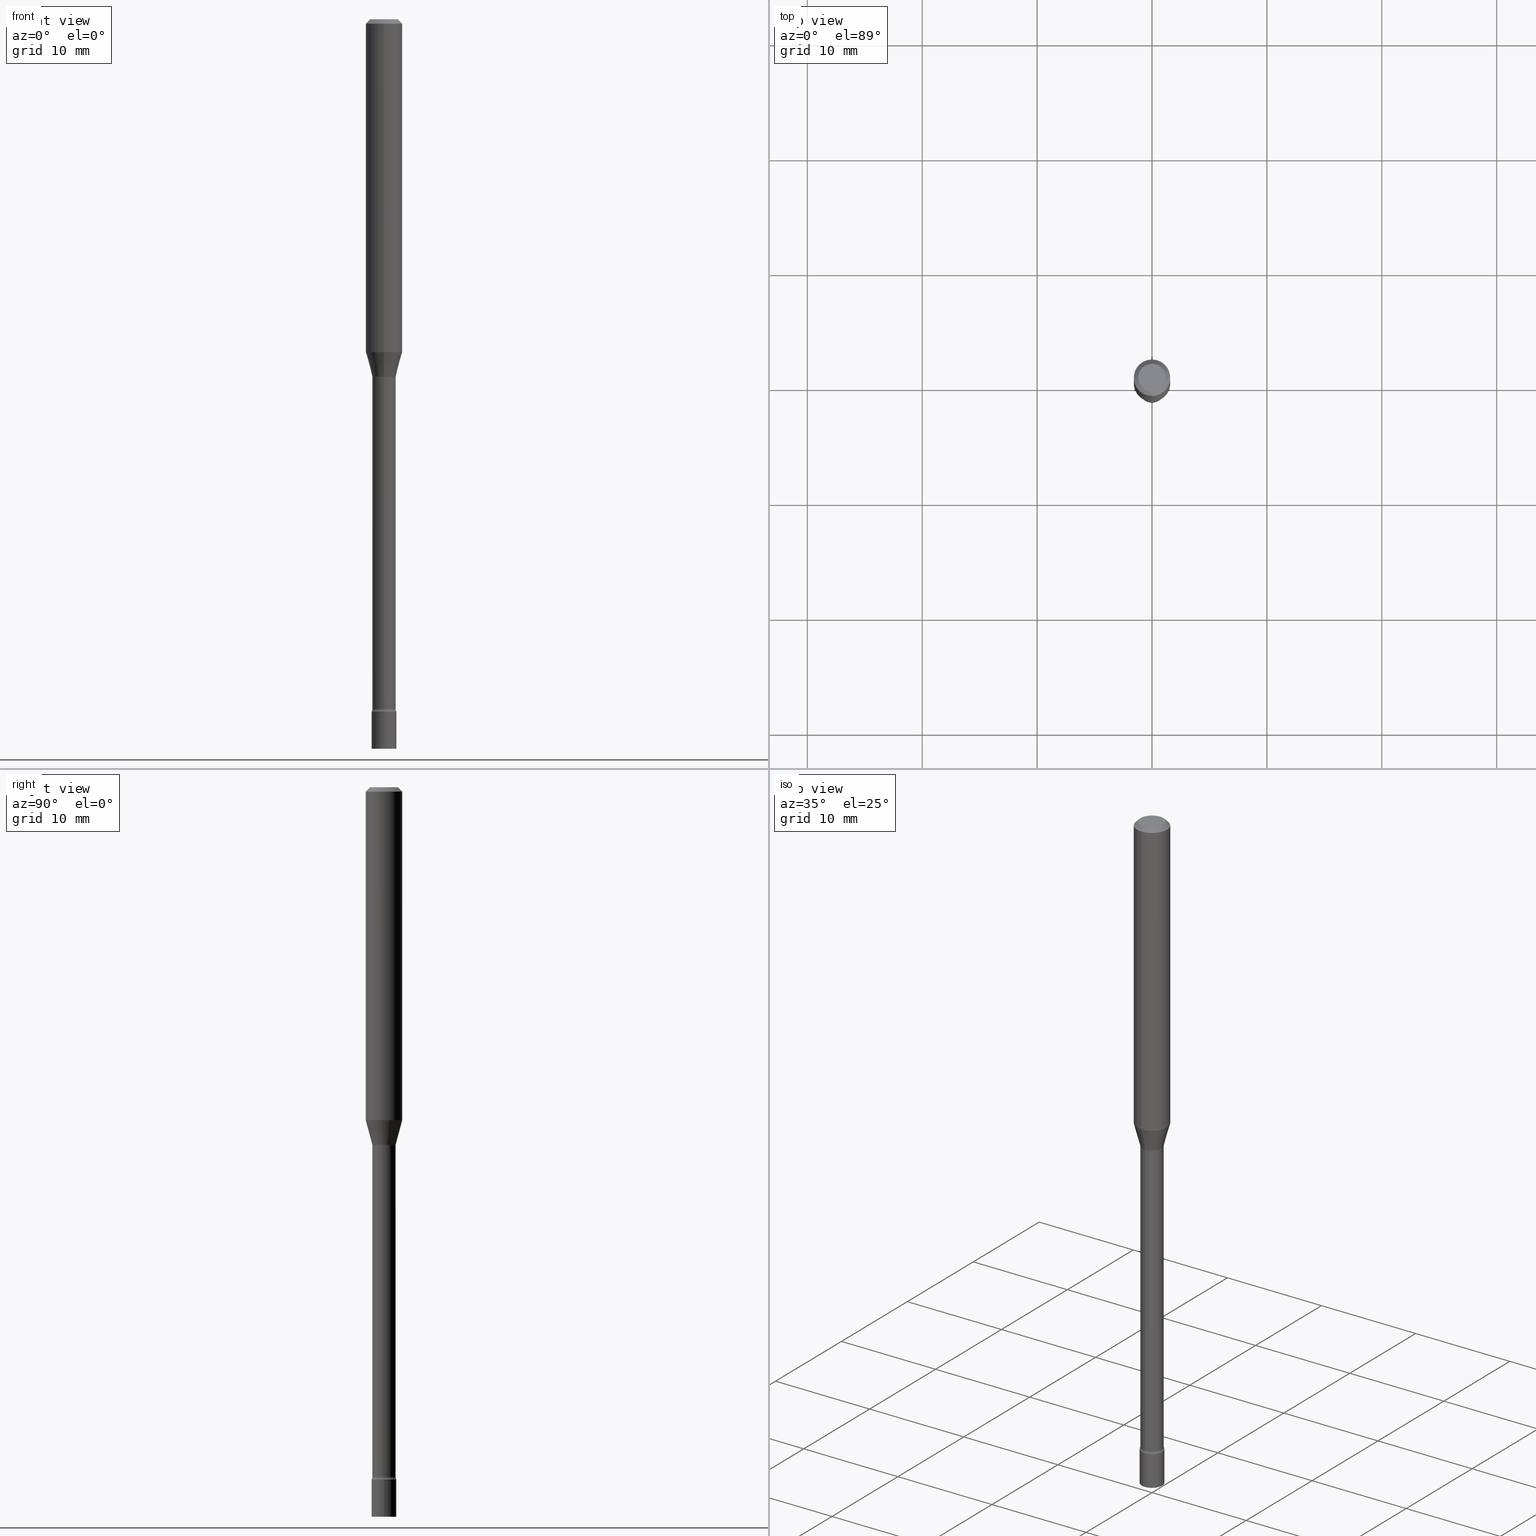
[diagram: canonical four-view strip — front | top / right | iso, engineering-drawing reading convention]
A machine part, canonical four-view strip (front | top / right | iso — engineering-drawing reading convention). The complete STEP part file that produces these views, byte-faithful:
ISO-10303-21;
HEADER;
FILE_DESCRIPTION (( 'STEP AP203' ),
    '1' );
FILE_NAME ('09729.STEP',
    '2024-03-09T01:21:40',
    ( '' ),
    ( '' ),
    'SwSTEP 2.0',
    'SolidWorks 2023',
    '' );
FILE_SCHEMA (( 'CONFIG_CONTROL_DESIGN' ));
ENDSEC;

DATA;
#1 = VERTEX_POINT ( 'NONE', #287 ) ;
#2 = DIRECTION ( 'NONE',  ( -2.445510009417752307E-29, 3.491422333468896927E-15, 1.000000000000000000 ) ) ;
#3 = DIRECTION ( 'NONE',  ( -2.445510009417752588E-29, 3.491422333468897321E-15, 1.000000000000000000 ) ) ;
#4 = UNCERTAINTY_MEASURE_WITH_UNIT (LENGTH_MEASURE( 1.000000000000000082E-05 ), #430, 'distance_accuracy_value', 'NONE');
#5 = DIRECTION ( 'NONE',  ( -6.982962677686265922E-15, -1.000000000000000000, 3.375893317972975273E-15 ) ) ;
#6 = EDGE_LOOP ( 'NONE', ( #498, #444, #475, #347 ) ) ;
#7 = AXIS2_PLACEMENT_3D ( 'NONE', #282, #121, #86 ) ;
#8 = EDGE_LOOP ( 'NONE', ( #411, #141, #196, #345 ) ) ;
#9 = CC_DESIGN_APPROVAL ( #511, ( #463 ) ) ;
#10 = DIRECTION ( 'NONE',  ( -6.982962677686266711E-15, -1.000000000000000000, 3.491422333468897716E-15 ) ) ;
#11 = DIRECTION ( 'NONE',  ( -2.445468806185136597E-29, 3.491481338843145583E-15, 1.000000000000000000 ) ) ;
#12 = DIRECTION ( 'NONE',  ( 7.105427357601001859E-15, 1.000000000000000000, 0.000000000000000000 ) ) ;
#13 = CYLINDRICAL_SURFACE ( 'NONE', #157, 0.06250000000000000000 ) ;
#14 = EDGE_LOOP ( 'NONE', ( #200, #114 ) ) ;
#15 = CARTESIAN_POINT ( 'NONE',  ( 5.780192113673480765E-29, -8.252582428684399354E-15, -2.363633549139569467 ) ) ;
#16 = ORIENTED_EDGE ( 'NONE', *, *, #279, .F. ) ;
#17 = TOROIDAL_SURFACE ( 'NONE', #27, 0.05495000000000011681, 0.01500000000000002373 ) ;
#18 = ORGANIZATION ( 'UNSPECIFIED', 'UNSPECIFIED', '' ) ;
#19 = ADVANCED_FACE ( 'NONE', ( #328 ), #49, .T. ) ;
#20 = DIRECTION ( 'NONE',  ( 2.438088387897960049E-29, -3.491481338843145188E-15, -1.000000000000000000 ) ) ;
#21 = DIRECTION ( 'NONE',  ( -1.000000000000000000, 6.982962677686265922E-15, -4.876176775795935793E-29 ) ) ;
#22 = EDGE_CURVE ( 'NONE', #366, #35, #310, .T. ) ;
#23 = PLANE ( 'NONE',  #329 ) ;
#24 = EDGE_CURVE ( 'NONE', #391, #381, #452, .T. ) ;
#25 = ORIENTED_EDGE ( 'NONE', *, *, #251, .T. ) ;
#26 = CARTESIAN_POINT ( 'NONE',  ( -4.364351673553637635E-16, -0.06250000000000398293, -1.140842254289321733 ) ) ;
#27 = AXIS2_PLACEMENT_3D ( 'NONE', #15, #449, #52 ) ;
#28 = EDGE_LOOP ( 'NONE', ( #186, #175, #146, #180 ) ) ;
#29 = EDGE_CURVE ( 'NONE', #429, #464, #85, .T. ) ;
#30 = CALENDAR_DATE ( 2024, 8, 3 ) ;
#31 = DATE_TIME_ROLE ( 'creation_date' ) ;
#32 = ADVANCED_FACE ( 'NONE', ( #401 ), #413, .T. ) ;
#33 = ORIENTED_EDGE ( 'NONE', *, *, #483, .F. ) ;
#34 = AXIS2_PLACEMENT_3D ( 'NONE', #301, #457, #373 ) ;
#35 = VERTEX_POINT ( 'NONE', #172 ) ;
#36 = PERSON_AND_ORGANIZATION ( #138, #18 ) ;
#37 = DIRECTION ( 'NONE',  ( -6.982962677686267499E-15, -1.000000000000000000, 0.000000000000000000 ) ) ;
#38 = EDGE_CURVE ( 'NONE', #391, #70, #484, .T. ) ;
#39 = DIRECTION ( 'NONE',  ( -2.445510009417752588E-29, 3.491422333468897321E-15, 1.000000000000000000 ) ) ;
#40 = CARTESIAN_POINT ( 'NONE',  ( 3.904432333002336662E-16, 0.05494999999999186646, -2.363633549139569912 ) ) ;
#41 = AXIS2_PLACEMENT_3D ( 'NONE', #334, #294, #178 ) ;
#42 = APPROVAL ( #147, 'UNSPECIFIED' ) ;
#43 = CARTESIAN_POINT ( 'NONE',  ( 2.991084955564577098E-29, -4.270332476638432999E-15, -1.223092501787273356 ) ) ;
#44 = FACE_OUTER_BOUND ( 'NONE', #265, .T. ) ;
#45 = DIRECTION ( 'NONE',  ( 1.000000000000000000, -7.105427357601001070E-15, 4.926314785934655132E-29 ) ) ;
#46 = ADVANCED_FACE ( 'NONE', ( #517 ), #158, .F. ) ;
#47 = EDGE_LOOP ( 'NONE', ( #78, #25, #330, #221 ) ) ;
#48 = DIRECTION ( 'NONE',  ( -2.445510009417752588E-29, 3.491422333468897321E-15, 1.000000000000000000 ) ) ;
#49 = CYLINDRICAL_SURFACE ( 'NONE', #179, 0.04249999999999999611 ) ;
#50 = VECTOR ( 'NONE', #376, 39.37007874015748143 ) ;
#51 = CARTESIAN_POINT ( 'NONE',  ( 4.364351673553919652E-16, 0.06249999999999995143, -0.01500000000000024751 ) ) ;
#52 = DIRECTION ( 'NONE',  ( -6.982962677686265133E-15, -1.000000000000000000, 3.491422333468897321E-15 ) ) ;
#53 = CARTESIAN_POINT ( 'NONE',  ( 5.800652008271143730E-29, -8.281793735735941096E-15, -2.371999999999999886 ) ) ;
#54 = DIRECTION ( 'NONE',  ( -2.445468806185136597E-29, 3.491481338843145583E-15, 1.000000000000000000 ) ) ;
#55 = ORIENTED_EDGE ( 'NONE', *, *, #206, .T. ) ;
#56 = CARTESIAN_POINT ( 'NONE',  ( -3.837137991388302635E-16, -0.05495000000000428708, -1.226974787463810834 ) ) ;
#57 = ORIENTED_EDGE ( 'NONE', *, *, #514, .T. ) ;
#58 = DIRECTION ( 'NONE',  ( 1.000000000000000000, -6.982962677686265922E-15, 4.876176775795935793E-29 ) ) ;
#59 = AXIS2_PLACEMENT_3D ( 'NONE', #280, #205, #288 ) ;
#60 = CARTESIAN_POINT ( 'NONE',  ( 3.000579124045969393E-29, -4.283887175554402762E-15, -1.226974787463810834 ) ) ;
#61 = VERTEX_POINT ( 'NONE', #404 ) ;
#62 = DIRECTION ( 'NONE',  ( -2.445510009417752307E-29, 3.491422333468896927E-15, 1.000000000000000000 ) ) ;
#63 = ORIENTED_EDGE ( 'NONE', *, *, #218, .F. ) ;
#64 = LINE ( 'NONE', #505, #50 ) ;
#65 = ORIENTED_EDGE ( 'NONE', *, *, #198, .F. ) ;
#66 = APPROVAL_PERSON_ORGANIZATION ( #434, #42, #109 ) ;
#67 = DATE_AND_TIME ( #349, #214 ) ;
#68 = COORDINATED_UNIVERSAL_TIME_OFFSET ( 5, 0, .BEHIND. ) ;
#69 = AXIS2_PLACEMENT_3D ( 'NONE', #173, #127, #367 ) ;
#70 = VERTEX_POINT ( 'NONE', #119 ) ;
#71 = SECURITY_CLASSIFICATION ( '', '', #272 ) ;
#72 = PERSON_AND_ORGANIZATION_ROLE ( 'design_owner' ) ;
#73 = DIRECTION ( 'NONE',  ( -6.982962677686265133E-15, -1.000000000000000000, 3.419083846888939697E-15 ) ) ;
#74 = EDGE_CURVE ( 'NONE', #381, #61, #506, .T. ) ;
#75 = CARTESIAN_POINT ( 'NONE',  ( 5.780289503016424923E-29, -8.252442961602247403E-15, -2.363633549139569467 ) ) ;
#76 = CC_DESIGN_PERSON_AND_ORGANIZATION_ASSIGNMENT ( #433, #351, ( #454 ) ) ;
#77 = DIRECTION ( 'NONE',  ( -2.445510009417752307E-29, 3.491422333468896927E-15, 1.000000000000000000 ) ) ;
#78 = ORIENTED_EDGE ( 'NONE', *, *, #448, .F. ) ;
#79 = LOCAL_TIME ( 20, 21, 40.00000000000000000, #154 ) ;
#80 = ORIENTED_EDGE ( 'NONE', *, *, #402, .T. ) ;
#81 = LINE ( 'NONE', #519, #88 ) ;
#82 = DIRECTION ( 'NONE',  ( -6.982962677686265133E-15, -1.000000000000000000, 3.491422333468897321E-15 ) ) ;
#83 = ADVANCED_BREP_SHAPE_REPRESENTATION ( '09729', ( #107, #450, #486 ), #317 ) ;
#84 = CARTESIAN_POINT ( 'NONE',  ( -4.364351673553916201E-16, -0.06250000000000000000, 2.182138958418060826E-16 ) ) ;
#85 = LINE ( 'NONE', #248, #133 ) ;
#86 = DIRECTION ( 'NONE',  ( 6.982962677686265922E-15, 1.000000000000000000, -3.483106191921935554E-15 ) ) ;
#87 = DIRECTION ( 'NONE',  ( -2.445510009417752588E-29, 3.491422333468897321E-15, 1.000000000000000000 ) ) ;
#88 = VECTOR ( 'NONE', #201, 39.37007874015748143 ) ;
#89 = ORIENTED_EDGE ( 'NONE', *, *, #125, .F. ) ;
#90 = VECTOR ( 'NONE', #2, 39.37007874015748143 ) ;
#91 = CYLINDRICAL_SURFACE ( 'NONE', #350, 0.03995000000000004797 ) ;
#92 = CARTESIAN_POINT ( 'NONE',  ( 4.440892098500625669E-16, 0.06250000000000000000, -2.182138958418060826E-16 ) ) ;
#93 = DIRECTION ( 'NONE',  ( -2.445510009417752588E-29, 3.491422333468897321E-15, 1.000000000000000000 ) ) ;
#94 = PRODUCT_RELATED_PRODUCT_CATEGORY ( 'detail', '', ( #191 ) ) ;
#95 = DIRECTION ( 'NONE',  ( -2.445510009417752588E-29, 3.491422333468897321E-15, 1.000000000000000000 ) ) ;
#96 = DIRECTION ( 'NONE',  ( -6.982962677686266711E-15, -1.000000000000000000, 0.000000000000000000 ) ) ;
#97 = ORIENTED_EDGE ( 'NONE', *, *, #372, .F. ) ;
#98 = AXIS2_PLACEMENT_3D ( 'NONE', #122, #491, #37 ) ;
#99 = CIRCLE ( 'NONE', #461, 0.01499999999999998557 ) ;
#100 = AXIS2_PLACEMENT_3D ( 'NONE', #510, #95, #460 ) ;
#101 = VERTEX_POINT ( 'NONE', #284 ) ;
#102 = PLANE ( 'NONE',  #285 ) ;
#103 = DATE_AND_TIME ( #400, #477 ) ;
#104 = AXIS2_PLACEMENT_3D ( 'NONE', #420, #93, #174 ) ;
#105 = VECTOR ( 'NONE', #479, 39.37007874015748143 ) ;
#106 = VERTEX_POINT ( 'NONE', #161 ) ;
#107 = MANIFOLD_SOLID_BREP ( 'Body-Move/Copy2[1]', #194 ) ;
#108 = ADVANCED_FACE ( 'NONE', ( #44 ), #389, .F. ) ;
#109 = APPROVAL_ROLE ( '' ) ;
#110 = ORIENTED_EDGE ( 'NONE', *, *, #418, .F. ) ;
#111 = CALENDAR_DATE ( 2024, 8, 3 ) ;
#112 = EDGE_CURVE ( 'NONE', #101, #427, #213, .T. ) ;
#113 = AXIS2_PLACEMENT_3D ( 'NONE', #439, #246, #302 ) ;
#114 = ORIENTED_EDGE ( 'NONE', *, *, #318, .F. ) ;
#115 = CIRCLE ( 'NONE', #507, 0.04749999999999999362 ) ;
#116 = ADVANCED_FACE ( 'NONE', ( #298 ), #91, .T. ) ;
#117 = EDGE_LOOP ( 'NONE', ( #305, #455, #239, #63 ) ) ;
#118 = CARTESIAN_POINT ( 'NONE',  ( 7.071611275160035944E-46, -1.009604599638609212E-31, -2.891671368314580418E-17 ) ) ;
#119 = CARTESIAN_POINT ( 'NONE',  ( -2.967759138016083736E-16, -0.04250000000000828809, -2.371999999999999886 ) ) ;
#120 = ORIENTED_EDGE ( 'NONE', *, *, #251, .F. ) ;
#121 = DIRECTION ( 'NONE',  ( 2.445510009417752588E-29, -3.491422333468897321E-15, -1.000000000000000000 ) ) ;
#122 = CARTESIAN_POINT ( 'NONE',  ( -3.837137991388033436E-16, -0.05495000000000837409, -2.363633549139569023 ) ) ;
#123 = AXIS2_PLACEMENT_3D ( 'NONE', #142, #462, #371 ) ;
#124 = VECTOR ( 'NONE', #139, 39.37007874015748143 ) ;
#125 = EDGE_CURVE ( 'NONE', #1, #228, #260, .T. ) ;
#126 = ORIENTED_EDGE ( 'NONE', *, *, #74, .T. ) ;
#127 = DIRECTION ( 'NONE',  ( -2.445510009417752588E-29, 3.491422333468897321E-15, 1.000000000000000000 ) ) ;
#128 = ORIENTED_EDGE ( 'NONE', *, *, #218, .T. ) ;
#129 = CARTESIAN_POINT ( 'NONE',  ( 2.929212428171595135E-16, 0.03994999999999183926, -2.363633549139569912 ) ) ;
#130 = DIRECTION ( 'NONE',  ( -1.807323732225325801E-15, -0.2588190451025175753, 0.9659258262890690894 ) ) ;
#131 = DIRECTION ( 'NONE',  ( -2.445510009417752588E-29, 3.491422333468897321E-15, 1.000000000000000000 ) ) ;
#132 = DIRECTION ( 'NONE',  ( -2.445510009417752588E-29, 3.491422333468897321E-15, 1.000000000000000000 ) ) ;
#133 = VECTOR ( 'NONE', #130, 39.37007874015748854 ) ;
#134 = ORIENTED_EDGE ( 'NONE', *, *, #29, .F. ) ;
#135 = DIRECTION ( 'NONE',  ( 6.982962677686265922E-15, 1.000000000000000000, -3.491422333468896927E-15 ) ) ;
#136 = DIRECTION ( 'NONE',  ( -2.445510009417752588E-29, 3.491422333468897321E-15, 1.000000000000000000 ) ) ;
#137 = CC_DESIGN_DATE_AND_TIME_ASSIGNMENT ( #155, #435, ( #71 ) ) ;
#138 = PERSON ( 'UNSPECIFIED', 'UNSPECIFIED', 'UNSPECIFIED', ('UNSPECIFIED'), ('UNSPECIFIED'), ('UNSPECIFIED') ) ;
#139 = DIRECTION ( 'NONE',  ( 1.839019923739595977E-15, 0.2588190451025243477, 0.9659258262890673130 ) ) ;
#140 = DIRECTION ( 'NONE',  ( 1.000000000000000000, -6.982962677686254089E-15, 0.000000000000000000 ) ) ;
#141 = ORIENTED_EDGE ( 'NONE', *, *, #377, .T. ) ;
#142 = CARTESIAN_POINT ( 'NONE',  ( 5.800652008271143730E-29, -8.281793735735941096E-15, -2.371999999999999886 ) ) ;
#143 = ORIENTED_EDGE ( 'NONE', *, *, #112, .T. ) ;
#144 = AXIS2_PLACEMENT_3D ( 'NONE', #422, #291, #453 ) ;
#145 =( LENGTH_UNIT ( ) NAMED_UNIT ( * ) SI_UNIT ( $, .METRE. ) );
#146 = ORIENTED_EDGE ( 'NONE', *, *, #38, .T. ) ;
#147 = APPROVAL_STATUS ( 'not_yet_approved' ) ;
#148 = AXIS2_PLACEMENT_3D ( 'NONE', #286, #447, #160 ) ;
#149 = AXIS2_PLACEMENT_3D ( 'NONE', #240, #162, #320 ) ;
#150 = EDGE_CURVE ( 'NONE', #436, #308, #441, .T. ) ;
#151 = COORDINATED_UNIVERSAL_TIME_OFFSET ( 5, 0, .BEHIND. ) ;
#152 = ORIENTED_EDGE ( 'NONE', *, *, #440, .T. ) ;
#153 = ADVANCED_FACE ( 'NONE', ( #493 ), #518, .F. ) ;
#154 = COORDINATED_UNIVERSAL_TIME_OFFSET ( 5, 0, .BEHIND. ) ;
#155 = DATE_AND_TIME ( #111, #380 ) ;
#156 = ADVANCED_FACE ( 'NONE', ( #217 ), #336, .T. ) ;
#157 = AXIS2_PLACEMENT_3D ( 'NONE', #183, #136, #340 ) ;
#158 = PLANE ( 'NONE',  #326 ) ;
#159 = AXIS2_PLACEMENT_3D ( 'NONE', #43, #39, #242 ) ;
#160 = DIRECTION ( 'NONE',  ( -6.982962677686265922E-15, -1.000000000000000000, 4.370956789862821150E-15 ) ) ;
#161 = CARTESIAN_POINT ( 'NONE',  ( 4.440892098500904235E-16, 0.06249999999999603095, -1.140842254289322177 ) ) ;
#162 = DIRECTION ( 'NONE',  ( -2.445510009417752588E-29, 3.491422333468897321E-15, 1.000000000000000000 ) ) ;
#163 = DIRECTION ( 'NONE',  ( 1.000000000000000000, -6.982962677686267499E-15, 4.876176775795935793E-29 ) ) ;
#164 = FACE_OUTER_BOUND ( 'NONE', #270, .T. ) ;
#165 = EDGE_LOOP ( 'NONE', ( #431, #57, #480, #16 ) ) ;
#166 = AXIS2_PLACEMENT_3D ( 'NONE', #503, #417, #256 ) ;
#167 = CC_DESIGN_PERSON_AND_ORGANIZATION_ASSIGNMENT ( #315, #72, ( #191 ) ) ;
#168 = CIRCLE ( 'NONE', #169, 0.06250000000000000000 ) ;
#169 = AXIS2_PLACEMENT_3D ( 'NONE', #385, #346, #338 ) ;
#170 = ORIENTED_EDGE ( 'NONE', *, *, #354, .T. ) ;
#171 = DIRECTION ( 'NONE',  ( -2.445468806185136597E-29, 3.491481338843145583E-15, 1.000000000000000000 ) ) ;
#172 = CARTESIAN_POINT ( 'NONE',  ( 2.838618229362181985E-16, 0.03994999999999571810, -1.226974787463811056 ) ) ;
#173 = CARTESIAN_POINT ( 'NONE',  ( 2.991084955564577098E-29, -4.270332476638432999E-15, -1.223092501787273356 ) ) ;
#174 = DIRECTION ( 'NONE',  ( -6.982962677686265922E-15, -1.000000000000000000, 3.491422333468897321E-15 ) ) ;
#175 = ORIENTED_EDGE ( 'NONE', *, *, #24, .F. ) ;
#176 = DIRECTION ( 'NONE',  ( 0.000000000000000000, 0.000000000000000000, 1.000000000000000000 ) ) ;
#177 = EDGE_CURVE ( 'NONE', #381, #391, #327, .T. ) ;
#178 = DIRECTION ( 'NONE',  ( -6.982962677686265922E-15, -1.000000000000000000, 3.483106191921935554E-15 ) ) ;
#179 = AXIS2_PLACEMENT_3D ( 'NONE', #356, #11, #163 ) ;
#180 = ORIENTED_EDGE ( 'NONE', *, *, #209, .T. ) ;
#181 = APPLICATION_PROTOCOL_DEFINITION ( 'international standard', 'config_control_design', 1994, #490 ) ;
#182 = FACE_OUTER_BOUND ( 'NONE', #237, .T. ) ;
#183 = CARTESIAN_POINT ( 'NONE',  ( 0.000000000000000000, 0.000000000000000000, 0.000000000000000000 ) ) ;
#184 = EDGE_LOOP ( 'NONE', ( #241, #348, #296, #134 ) ) ;
#185 = CARTESIAN_POINT ( 'NONE',  ( 2.874934964272894628E-16, 0.04046111260565971729, -1.223092501787273356 ) ) ;
#186 = ORIENTED_EDGE ( 'NONE', *, *, #74, .F. ) ;
#187 = AXIS2_PLACEMENT_3D ( 'NONE', #207, #3, #82 ) ;
#188 = FACE_OUTER_BOUND ( 'NONE', #267, .T. ) ;
#189 = CIRCLE ( 'NONE', #276, 0.04249999999999999611 ) ;
#190 = EDGE_CURVE ( 'NONE', #35, #366, #432, .T. ) ;
#191 = PRODUCT ( '09729', '09729', '', ( #502 ) ) ;
#192 = ADVANCED_FACE ( 'NONE', ( #227 ), #17, .F. ) ;
#193 = APPROVAL_DATE_TIME ( #103, #264 ) ;
#194 = CLOSED_SHELL ( 'NONE', ( #19, #488, #32, #156 ) ) ;
#195 = CIRCLE ( 'NONE', #34, 0.06250000000000000000 ) ;
#196 = ORIENTED_EDGE ( 'NONE', *, *, #22, .F. ) ;
#197 = ADVANCED_FACE ( 'NONE', ( #250 ), #13, .T. ) ;
#198 = EDGE_CURVE ( 'NONE', #61, #70, #476, .T. ) ;
#199 = PERSON_AND_ORGANIZATION ( #138, #18 ) ;
#200 = ORIENTED_EDGE ( 'NONE', *, *, #150, .F. ) ;
#201 = DIRECTION ( 'NONE',  ( -2.445468806185136877E-29, 3.491481338843145188E-15, 1.000000000000000000 ) ) ;
#202 = AXIS2_PLACEMENT_3D ( 'NONE', #247, #45, #12 ) ;
#203 = ORIENTED_EDGE ( 'NONE', *, *, #352, .T. ) ;
#204 = LOCAL_TIME ( 20, 21, 40.00000000000000000, #151 ) ;
#205 = DIRECTION ( 'NONE',  ( -2.445510009417752588E-29, 3.491422333468897321E-15, 1.000000000000000000 ) ) ;
#206 = EDGE_CURVE ( 'NONE', #501, #281, #415, .T. ) ;
#207 = CARTESIAN_POINT ( 'NONE',  ( 5.780192113673480765E-29, -8.252582428684399354E-15, -2.363633549139569467 ) ) ;
#208 = LINE ( 'NONE', #84, #90 ) ;
#209 = EDGE_CURVE ( 'NONE', #70, #61, #275, .T. ) ;
#210 = VERTEX_POINT ( 'NONE', #254 ) ;
#211 = DIRECTION ( 'NONE',  ( -6.982962677686265922E-15, -1.000000000000000000, 3.491422333468897716E-15 ) ) ;
#212 = DIRECTION ( 'NONE',  ( -6.982962677686266711E-15, -1.000000000000000000, 6.838167693777865194E-15 ) ) ;
#213 = CIRCLE ( 'NONE', #113, 0.04749999999999999362 ) ;
#214 = LOCAL_TIME ( 20, 21, 40.00000000000000000, #68 ) ;
#215 = CYLINDRICAL_SURFACE ( 'NONE', #149, 0.06250000000000000000 ) ;
#216 = APPLICATION_CONTEXT ( 'configuration controlled 3d designs of mechanical parts and assemblies' ) ;
#217 = FACE_OUTER_BOUND ( 'NONE', #14, .T. ) ;
#218 = EDGE_CURVE ( 'NONE', #429, #366, #99, .T. ) ;
#219 = ORIENTED_EDGE ( 'NONE', *, *, #307, .T. ) ;
#220 = CARTESIAN_POINT ( 'NONE',  ( 5.780289503016424923E-29, -8.252442961602247403E-15, -2.363633549139569467 ) ) ;
#221 = ORIENTED_EDGE ( 'NONE', *, *, #472, .F. ) ;
#222 = DIRECTION ( 'NONE',  ( -2.438088387897960049E-29, 3.491481338843145188E-15, 1.000000000000000000 ) ) ;
#223 = DIRECTION ( 'NONE',  ( -1.000000000000000000, 6.982962677686265922E-15, -4.883557194083112901E-29 ) ) ;
#224 = CLOSED_SHELL ( 'NONE', ( #153, #116, #108, #410, #197, #394, #299, #383, #266, #469, #46, #192, #226, #467 ) ) ;
#225 = AXIS2_PLACEMENT_3D ( 'NONE', #323, #481, #255 ) ;
#226 = ADVANCED_FACE ( 'NONE', ( #182 ), #339, .T. ) ;
#227 = FACE_OUTER_BOUND ( 'NONE', #28, .T. ) ;
#228 = VERTEX_POINT ( 'NONE', #370 ) ;
#229 = DIRECTION ( 'NONE',  ( 1.000000000000000000, -6.982962677686276177E-15, 0.000000000000000000 ) ) ;
#230 = EDGE_LOOP ( 'NONE', ( #375, #423, #170, #504 ) ) ;
#231 = CARTESIAN_POINT ( 'NONE',  ( -3.773273898774340269E-16, -0.04749999999999999362, 1.369258471566268159E-16 ) ) ;
#232 = ORIENTED_EDGE ( 'NONE', *, *, #177, .T. ) ;
#233 = AXIS2_PLACEMENT_3D ( 'NONE', #378, #54, #140 ) ;
#234 = CC_DESIGN_PERSON_AND_ORGANIZATION_ASSIGNMENT ( #199, #466, ( #71 ) ) ;
#235 = APPROVAL_DATE_TIME ( #67, #42 ) ;
#236 = APPROVAL_PERSON_ORGANIZATION ( #355, #511, #471 ) ;
#237 = EDGE_LOOP ( 'NONE', ( #261, #232, #80, #408 ) ) ;
#238 = PERSON_AND_ORGANIZATION_ROLE ( 'design_supplier' ) ;
#239 = ORIENTED_EDGE ( 'NONE', *, *, #190, .T. ) ;
#240 = CARTESIAN_POINT ( 'NONE',  ( 0.000000000000000000, 0.000000000000000000, 0.000000000000000000 ) ) ;
#241 = ORIENTED_EDGE ( 'NONE', *, *, #392, .T. ) ;
#242 = DIRECTION ( 'NONE',  ( -6.982962677686265922E-15, -1.000000000000000000, 3.375893317972975273E-15 ) ) ;
#243 = DIRECTION ( 'NONE',  ( -6.982962677686265922E-15, -1.000000000000000000, 3.491422333468896927E-15 ) ) ;
#244 = CONICAL_SURFACE ( 'NONE', #159, 0.04046111260566398471, 0.2617993877991496299 ) ;
#245 = CARTESIAN_POINT ( 'NONE',  ( -2.789693589735666734E-16, -0.03995000000000004797, 1.394823222220826282E-16 ) ) ;
#246 = DIRECTION ( 'NONE',  ( -2.445510009417752588E-29, 3.491422333468897321E-15, 1.000000000000000000 ) ) ;
#247 = CARTESIAN_POINT ( 'NONE',  ( 3.904432333002050206E-16, 0.05494999999999571755, -1.226974787463811278 ) ) ;
#248 = CARTESIAN_POINT ( 'NONE',  ( -2.825384392229830393E-16, -0.04046111260566825213, -1.223092501787273134 ) ) ;
#249 = CARTESIAN_POINT ( 'NONE',  ( -0.04249999999999999611, -8.203267878723860567E-15, -2.500000000000000000 ) ) ;
#250 = FACE_OUTER_BOUND ( 'NONE', #324, .T. ) ;
#251 = EDGE_CURVE ( 'NONE', #106, #464, #316, .T. ) ;
#252 = AXIS2_PLACEMENT_3D ( 'NONE', #259, #485, #211 ) ;
#253 = ORIENTED_EDGE ( 'NONE', *, *, #177, .F. ) ;
#254 = CARTESIAN_POINT ( 'NONE',  ( 3.657913531386900171E-16, 0.04046111260565971729, -1.223092501787273356 ) ) ;
#255 = DIRECTION ( 'NONE',  ( 6.982962677686265922E-15, 1.000000000000000000, -3.483106191921935554E-15 ) ) ;
#256 = DIRECTION ( 'NONE',  ( -6.982962677686266711E-15, -1.000000000000000000, 6.427877632151208176E-15 ) ) ;
#257 = EDGE_LOOP ( 'NONE', ( #387, #55 ) ) ;
#258 = CARTESIAN_POINT ( 'NONE',  ( 3.316907271900976096E-16, 0.04749999999999999362, -1.803009176813455129E-16 ) ) ;
#259 = CARTESIAN_POINT ( 'NONE',  ( 0.000000000000000000, 0.000000000000000000, 0.000000000000000000 ) ) ;
#260 = CIRCLE ( 'NONE', #41, 0.06250000000000000000 ) ;
#261 = ORIENTED_EDGE ( 'NONE', *, *, #377, .F. ) ;
#262 = AXIS2_PLACEMENT_3D ( 'NONE', #492, #131, #5 ) ;
#263 = LENGTH_MEASURE_WITH_UNIT ( LENGTH_MEASURE( 0.02539999999999999897 ), #145 );
#264 = APPROVAL ( #274, 'UNSPECIFIED' ) ;
#265 = EDGE_LOOP ( 'NONE', ( #253, #126, #384, #395 ) ) ;
#266 = ADVANCED_FACE ( 'NONE', ( #403 ), #343, .T. ) ;
#267 = EDGE_LOOP ( 'NONE', ( #143, #203 ) ) ;
#268 = SHAPE_DEFINITION_REPRESENTATION ( #508, #83 ) ;
#269 = AXIS2_PLACEMENT_3D ( 'NONE', #482, #437, #369 ) ;
#270 = EDGE_LOOP ( 'NONE', ( #33, #219, #273, #120 ) ) ;
#271 = PERSON_AND_ORGANIZATION ( #138, #18 ) ;
#272 = SECURITY_CLASSIFICATION_LEVEL ( 'unclassified' ) ;
#273 = ORIENTED_EDGE ( 'NONE', *, *, #29, .T. ) ;
#274 = APPROVAL_STATUS ( 'not_yet_approved' ) ;
#275 = CIRCLE ( 'NONE', #144, 0.04249999999999999611 ) ;
#276 = AXIS2_PLACEMENT_3D ( 'NONE', #494, #428, #229 ) ;
#277 = DESIGN_CONTEXT ( 'detailed design', #216, 'design' ) ;
#278 = DIRECTION ( 'NONE',  ( -2.445510009417752588E-29, 3.491422333468897321E-15, 1.000000000000000000 ) ) ;
#279 = EDGE_CURVE ( 'NONE', #101, #228, #442, .T. ) ;
#280 = CARTESIAN_POINT ( 'NONE',  ( 2.991084955564577098E-29, -4.270332476638432999E-15, -1.223092501787273356 ) ) ;
#281 = VERTEX_POINT ( 'NONE', #438 ) ;
#282 = CARTESIAN_POINT ( 'NONE',  ( 3.668265014126635783E-31, -5.237133500203356730E-17, -0.01500000000000003067 ) ) ;
#283 = CIRCLE ( 'NONE', #202, 0.01499999999999998557 ) ;
#284 = CARTESIAN_POINT ( 'NONE',  ( 3.840629472727447874E-16, 0.04749999999999999362, -1.947592745229184119E-16 ) ) ;
#285 = AXIS2_PLACEMENT_3D ( 'NONE', #258, #424, #135 ) ;
#286 = CARTESIAN_POINT ( 'NONE',  ( 2.789941152031250282E-29, -3.983162125590741875E-15, -1.140842254289322177 ) ) ;
#287 = CARTESIAN_POINT ( 'NONE',  ( -4.364351673553912750E-16, -0.06250000000000005551, -0.01499999999999981209 ) ) ;
#288 = DIRECTION ( 'NONE',  ( -6.982962677686265922E-15, -1.000000000000000000, 3.375893317972975273E-15 ) ) ;
#289 = EDGE_CURVE ( 'NONE', #308, #501, #81, .T. ) ;
#290 = LINE ( 'NONE', #331, #416 ) ;
#291 = DIRECTION ( 'NONE',  ( -2.445510009417752588E-29, 3.491422333468897321E-15, 1.000000000000000000 ) ) ;
#292 = ORIENTED_EDGE ( 'NONE', *, *, #354, .F. ) ;
#293 =( NAMED_UNIT ( * ) PLANE_ANGLE_UNIT ( ) SI_UNIT ( $, .RADIAN. ) );
#294 = DIRECTION ( 'NONE',  ( -2.445510009417752588E-29, 3.491422333468897321E-15, 1.000000000000000000 ) ) ;
#295 = EDGE_CURVE ( 'NONE', #210, #35, #283, .T. ) ;
#296 = ORIENTED_EDGE ( 'NONE', *, *, #440, .F. ) ;
#297 = FACE_OUTER_BOUND ( 'NONE', #257, .T. ) ;
#298 = FACE_OUTER_BOUND ( 'NONE', #8, .T. ) ;
#299 = ADVANCED_FACE ( 'NONE', ( #164 ), #405, .T. ) ;
#300 = ORIENTED_EDGE ( 'NONE', *, *, #150, .T. ) ;
#301 = CARTESIAN_POINT ( 'NONE',  ( 2.789941152031250282E-29, -3.983162125590741875E-15, -1.140842254289322177 ) ) ;
#302 = DIRECTION ( 'NONE',  ( -6.982962677686266711E-15, -1.000000000000000000, 3.491422333468897716E-15 ) ) ;
#303 = AXIS2_PLACEMENT_3D ( 'NONE', #75, #278, #212 ) ;
#304 = CC_DESIGN_APPROVAL ( #42, ( #71 ) ) ;
#305 = ORIENTED_EDGE ( 'NONE', *, *, #307, .F. ) ;
#306 = LINE ( 'NONE', #92, #443 ) ;
#307 = EDGE_CURVE ( 'NONE', #210, #429, #495, .T. ) ;
#308 = VERTEX_POINT ( 'NONE', #249 ) ;
#309 = COORDINATED_UNIVERSAL_TIME_OFFSET ( 5, 0, .BEHIND. ) ;
#310 = CIRCLE ( 'NONE', #358, 0.03995000000000000634 ) ;
#311 = COORDINATED_UNIVERSAL_TIME_OFFSET ( 5, 0, .BEHIND. ) ;
#312 = CC_DESIGN_APPROVAL ( #264, ( #454 ) ) ;
#313 = PERSON_AND_ORGANIZATION_ROLE ( 'creator' ) ;
#314 = CC_DESIGN_DATE_AND_TIME_ASSIGNMENT ( #393, #31, ( #454 ) ) ;
#315 = PERSON_AND_ORGANIZATION ( #138, #18 ) ;
#316 = CIRCLE ( 'NONE', #148, 0.06250000000000000000 ) ;
#317 =( GEOMETRIC_REPRESENTATION_CONTEXT ( 3 ) GLOBAL_UNCERTAINTY_ASSIGNED_CONTEXT ( ( #4 ) ) GLOBAL_UNIT_ASSIGNED_CONTEXT ( ( #430, #293, #465 ) ) REPRESENTATION_CONTEXT ( 'NONE', 'WORKASPACE' ) );
#318 = EDGE_CURVE ( 'NONE', #308, #436, #399, .T. ) ;
#319 = ORIENTED_EDGE ( 'NONE', *, *, #209, .F. ) ;
#320 = DIRECTION ( 'NONE',  ( -6.982962677686265922E-15, -1.000000000000000000, 3.491422333468897321E-15 ) ) ;
#321 = CC_DESIGN_PERSON_AND_ORGANIZATION_ASSIGNMENT ( #36, #238, ( #463 ) ) ;
#322 = CARTESIAN_POINT ( 'NONE',  ( 2.967759138017242869E-16, 0.04249999999999171801, -2.372000000000000330 ) ) ;
#323 = CARTESIAN_POINT ( 'NONE',  ( 3.668265014126635783E-31, -5.237133500203356730E-17, -0.01500000000000003067 ) ) ;
#324 = EDGE_LOOP ( 'NONE', ( #152, #459, #89, #97 ) ) ;
#325 = CARTESIAN_POINT ( 'NONE',  ( 6.113672015462842613E-29, -8.728703347107864943E-15, -2.500000000000000000 ) ) ;
#326 = AXIS2_PLACEMENT_3D ( 'NONE', #322, #332, #243 ) ;
#327 = CIRCLE ( 'NONE', #396, 0.03995000000000008961 ) ;
#328 = FACE_OUTER_BOUND ( 'NONE', #468, .T. ) ;
#329 = AXIS2_PLACEMENT_3D ( 'NONE', #53, #222, #58 ) ;
#330 = ORIENTED_EDGE ( 'NONE', *, *, #372, .T. ) ;
#331 = CARTESIAN_POINT ( 'NONE',  ( 2.838618229361603158E-16, 0.03995000000000004797, -1.394823222220826282E-16 ) ) ;
#332 = DIRECTION ( 'NONE',  ( -2.445510009417752307E-29, 3.491422333468896927E-15, 1.000000000000000000 ) ) ;
#333 = CARTESIAN_POINT ( 'NONE',  ( 0.04249999999999999611, -2.967759138016663549E-16, 2.072375129713272502E-30 ) ) ;
#334 = CARTESIAN_POINT ( 'NONE',  ( 3.668265014126635783E-31, -5.237133500203356730E-17, -0.01500000000000003067 ) ) ;
#335 = DIRECTION ( 'NONE',  ( 1.000000000000000000, 0.000000000000000000, 0.000000000000000000 ) ) ;
#336 = PLANE ( 'NONE',  #379 ) ;
#337 = AXIS2_PLACEMENT_3D ( 'NONE', #325, #171, #414 ) ;
#338 = DIRECTION ( 'NONE',  ( -6.982962677686265922E-15, -1.000000000000000000, 3.483106191921935554E-15 ) ) ;
#339 = CYLINDRICAL_SURFACE ( 'NONE', #252, 0.03995000000000004797 ) ;
#340 = DIRECTION ( 'NONE',  ( -6.982962677686265922E-15, -1.000000000000000000, 3.491422333468897321E-15 ) ) ;
#341 = EDGE_LOOP ( 'NONE', ( #319, #65 ) ) ;
#342 = FACE_OUTER_BOUND ( 'NONE', #487, .T. ) ;
#343 = CONICAL_SURFACE ( 'NONE', #7, 0.06250000000000000000, 0.7853981633974483900 ) ;
#344 = CIRCLE ( 'NONE', #262, 0.04046111260566398471 ) ;
#345 = ORIENTED_EDGE ( 'NONE', *, *, #402, .F. ) ;
#346 = DIRECTION ( 'NONE',  ( -2.445510009417752588E-29, 3.491422333468897321E-15, 1.000000000000000000 ) ) ;
#347 = ORIENTED_EDGE ( 'NONE', *, *, #472, .T. ) ;
#348 = ORIENTED_EDGE ( 'NONE', *, *, #483, .T. ) ;
#349 = CALENDAR_DATE ( 2024, 8, 3 ) ;
#350 = AXIS2_PLACEMENT_3D ( 'NONE', #425, #500, #458 ) ;
#351 = PERSON_AND_ORGANIZATION_ROLE ( 'creator' ) ;
#352 = EDGE_CURVE ( 'NONE', #427, #101, #115, .T. ) ;
#353 = APPLICATION_PROTOCOL_DEFINITION ( 'international standard', 'config_control_design', 1994, #216 ) ;
#354 = EDGE_CURVE ( 'NONE', #436, #281, #362, .T. ) ;
#355 = PERSON_AND_ORGANIZATION ( #138, #18 ) ;
#356 = CARTESIAN_POINT ( 'NONE',  ( 0.000000000000000000, 0.000000000000000000, 0.000000000000000000 ) ) ;
#357 = CC_DESIGN_PERSON_AND_ORGANIZATION_ASSIGNMENT ( #271, #313, ( #463 ) ) ;
#358 = AXIS2_PLACEMENT_3D ( 'NONE', #363, #446, #73 ) ;
#359 = LINE ( 'NONE', #245, #105 ) ;
#360 = DIRECTION ( 'NONE',  ( 1.000000000000000000, -7.105427357601001070E-15, 4.926314785934655132E-29 ) ) ;
#361 = ORIENTED_EDGE ( 'NONE', *, *, #22, .T. ) ;
#362 = LINE ( 'NONE', #333, #496 ) ;
#363 = CARTESIAN_POINT ( 'NONE',  ( 3.000579124045969393E-29, -4.283887175554402762E-15, -1.226974787463810834 ) ) ;
#364 = ORIENTED_EDGE ( 'NONE', *, *, #392, .F. ) ;
#365 = FACE_OUTER_BOUND ( 'NONE', #47, .T. ) ;
#366 = VERTEX_POINT ( 'NONE', #489 ) ;
#367 = DIRECTION ( 'NONE',  ( -6.982962677686265922E-15, -1.000000000000000000, 3.375893317972975273E-15 ) ) ;
#368 = AXIS2_PLACEMENT_3D ( 'NONE', #40, #360, #520 ) ;
#369 = DIRECTION ( 'NONE',  ( 1.000000000000000000, -6.982962677686267499E-15, 4.876176775795935793E-29 ) ) ;
#370 = CARTESIAN_POINT ( 'NONE',  ( 4.440892098500906207E-16, 0.06249999999999993755, -0.01500000000000024751 ) ) ;
#371 = DIRECTION ( 'NONE',  ( 1.000000000000000000, -6.982962677686276177E-15, 0.000000000000000000 ) ) ;
#372 = EDGE_CURVE ( 'NONE', #464, #1, #208, .T. ) ;
#373 = DIRECTION ( 'NONE',  ( -6.982962677686265922E-15, -1.000000000000000000, 4.370956789862821150E-15 ) ) ;
#374 = DIRECTION ( 'NONE',  ( -6.982962677686265133E-15, -1.000000000000000000, 3.419083846888939697E-15 ) ) ;
#375 = ORIENTED_EDGE ( 'NONE', *, *, #289, .F. ) ;
#376 = DIRECTION ( 'NONE',  ( -4.851104656540964275E-15, -0.7071067811865500152, -0.7071067811865450192 ) ) ;
#377 = EDGE_CURVE ( 'NONE', #381, #35, #290, .T. ) ;
#378 = CARTESIAN_POINT ( 'NONE',  ( 6.113672015462842613E-29, -8.728703347107864943E-15, -2.500000000000000000 ) ) ;
#379 = AXIS2_PLACEMENT_3D ( 'NONE', #456, #20, #21 ) ;
#380 = LOCAL_TIME ( 20, 21, 40.00000000000000000, #311 ) ;
#381 = VERTEX_POINT ( 'NONE', #129 ) ;
#382 = CARTESIAN_POINT ( 'NONE',  ( 0.04249999999999999611, -9.025479260909530016E-15, -2.500000000000000000 ) ) ;
#383 = ADVANCED_FACE ( 'NONE', ( #365 ), #215, .T. ) ;
#384 = ORIENTED_EDGE ( 'NONE', *, *, #198, .T. ) ;
#385 = CARTESIAN_POINT ( 'NONE',  ( 3.668265014126635783E-31, -5.237133500203356730E-17, -0.01500000000000003067 ) ) ;
#386 = DIMENSIONAL_EXPONENTS ( 1.000000000000000000, 0.000000000000000000, 0.000000000000000000, 0.000000000000000000, 0.000000000000000000, 0.000000000000000000, 0.000000000000000000 ) ;
#387 = ORIENTED_EDGE ( 'NONE', *, *, #418, .T. ) ;
#388 = CARTESIAN_POINT ( 'NONE',  ( -2.825384392229830393E-16, -0.04046111260566825213, -1.223092501787273134 ) ) ;
#389 = TOROIDAL_SURFACE ( 'NONE', #187, 0.05495000000000011681, 0.01500000000000002373 ) ;
#390 = CC_DESIGN_SECURITY_CLASSIFICATION ( #71, ( #463 ) ) ;
#391 = VERTEX_POINT ( 'NONE', #412 ) ;
#392 = EDGE_CURVE ( 'NONE', #429, #210, #344, .T. ) ;
#393 = DATE_AND_TIME ( #474, #79 ) ;
#394 = ADVANCED_FACE ( 'NONE', ( #451 ), #244, .T. ) ;
#395 = ORIENTED_EDGE ( 'NONE', *, *, #38, .F. ) ;
#396 = AXIS2_PLACEMENT_3D ( 'NONE', #220, #87, #497 ) ;
#397 = TOROIDAL_SURFACE ( 'NONE', #100, 0.05494999999999999885, 0.01499999999999998557 ) ;
#398 = DATE_AND_TIME ( #30, #204 ) ;
#399 = CIRCLE ( 'NONE', #337, 0.04249999999999999611 ) ;
#400 = CALENDAR_DATE ( 2024, 8, 3 ) ;
#401 = FACE_OUTER_BOUND ( 'NONE', #230, .T. ) ;
#402 = EDGE_CURVE ( 'NONE', #391, #366, #359, .T. ) ;
#403 = FACE_OUTER_BOUND ( 'NONE', #6, .T. ) ;
#404 = CARTESIAN_POINT ( 'NONE',  ( 3.019806626981006313E-16, 0.04249999999999172495, -2.372000000000000330 ) ) ;
#405 = CONICAL_SURFACE ( 'NONE', #59, 0.04046111260566398471, 0.2617993877991496299 ) ;
#406 = FACE_OUTER_BOUND ( 'NONE', #165, .T. ) ;
#407 = CONICAL_SURFACE ( 'NONE', #225, 0.06250000000000000000, 0.7853981633974483900 ) ;
#408 = ORIENTED_EDGE ( 'NONE', *, *, #190, .F. ) ;
#409 = DIRECTION ( 'NONE',  ( 4.937700262164548042E-15, 0.7071067811865451302, -0.7071067811865499042 ) ) ;
#410 = ADVANCED_FACE ( 'NONE', ( #406 ), #407, .T. ) ;
#411 = ORIENTED_EDGE ( 'NONE', *, *, #24, .T. ) ;
#412 = CARTESIAN_POINT ( 'NONE',  ( -2.789693589735091358E-16, -0.03995000000000834689, -2.363633549139569023 ) ) ;
#413 = CYLINDRICAL_SURFACE ( 'NONE', #269, 0.04249999999999999611 ) ;
#414 = DIRECTION ( 'NONE',  ( 1.000000000000000000, -6.982962677686254089E-15, 0.000000000000000000 ) ) ;
#415 = CIRCLE ( 'NONE', #123, 0.04249999999999999611 ) ;
#416 = VECTOR ( 'NONE', #77, 39.37007874015748143 ) ;
#417 = DIRECTION ( 'NONE',  ( -2.445510009417752588E-29, 3.491422333468897321E-15, 1.000000000000000000 ) ) ;
#418 = EDGE_CURVE ( 'NONE', #281, #501, #189, .T. ) ;
#419 = CARTESIAN_POINT ( 'NONE',  ( 0.000000000000000000, 0.000000000000000000, 0.000000000000000000 ) ) ;
#420 = CARTESIAN_POINT ( 'NONE',  ( 3.000528568718387816E-29, -4.283959573660931072E-15, -1.226974787463811056 ) ) ;
#421 = CARTESIAN_POINT ( 'NONE',  ( -0.04249999999999999611, -8.203267878723860567E-15, -2.371999999999999886 ) ) ;
#422 = CARTESIAN_POINT ( 'NONE',  ( 5.800749742338909035E-29, -8.281653774988223976E-15, -2.371999999999999886 ) ) ;
#423 = ORIENTED_EDGE ( 'NONE', *, *, #318, .T. ) ;
#424 = DIRECTION ( 'NONE',  ( 2.445510009417752307E-29, -3.491422333468896927E-15, -1.000000000000000000 ) ) ;
#425 = CARTESIAN_POINT ( 'NONE',  ( 0.000000000000000000, 0.000000000000000000, 0.000000000000000000 ) ) ;
#426 = APPROVAL_PERSON_ORGANIZATION ( #473, #264, #515 ) ;
#427 = VERTEX_POINT ( 'NONE', #231 ) ;
#428 = DIRECTION ( 'NONE',  ( -2.445468806185136597E-29, 3.491481338843145583E-15, 1.000000000000000000 ) ) ;
#429 = VERTEX_POINT ( 'NONE', #388 ) ;
#430 =( CONVERSION_BASED_UNIT ( 'INCH', #263 ) LENGTH_UNIT ( ) NAMED_UNIT ( #386 ) );
#431 = ORIENTED_EDGE ( 'NONE', *, *, #352, .F. ) ;
#432 = CIRCLE ( 'NONE', #470, 0.03995000000000000634 ) ;
#433 = PERSON_AND_ORGANIZATION ( #138, #18 ) ;
#434 = PERSON_AND_ORGANIZATION ( #138, #18 ) ;
#435 = DATE_TIME_ROLE ( 'classification_date' ) ;
#436 = VERTEX_POINT ( 'NONE', #382 ) ;
#437 = DIRECTION ( 'NONE',  ( -2.445468806185136597E-29, 3.491481338843145583E-15, 1.000000000000000000 ) ) ;
#438 = CARTESIAN_POINT ( 'NONE',  ( 0.04249999999999999611, -8.578569649537607747E-15, -2.371999999999999886 ) ) ;
#439 = CARTESIAN_POINT ( 'NONE',  ( 7.071611275160035944E-46, -1.009604599638609212E-31, -2.891671368314580418E-17 ) ) ;
#440 = EDGE_CURVE ( 'NONE', #464, #106, #195, .T. ) ;
#441 = CIRCLE ( 'NONE', #233, 0.04249999999999999611 ) ;
#442 = LINE ( 'NONE', #51, #512 ) ;
#443 = VECTOR ( 'NONE', #62, 39.37007874015748143 ) ;
#444 = ORIENTED_EDGE ( 'NONE', *, *, #112, .F. ) ;
#445 = DIRECTION ( 'NONE',  ( -2.445468806185136877E-29, 3.491481338843145188E-15, 1.000000000000000000 ) ) ;
#446 = DIRECTION ( 'NONE',  ( -2.445510009417752588E-29, 3.491422333468897321E-15, 1.000000000000000000 ) ) ;
#447 = DIRECTION ( 'NONE',  ( -2.445510009417752588E-29, 3.491422333468897321E-15, 1.000000000000000000 ) ) ;
#448 = EDGE_CURVE ( 'NONE', #106, #228, #306, .T. ) ;
#449 = DIRECTION ( 'NONE',  ( -2.445510009417752588E-29, 3.491422333468897321E-15, 1.000000000000000000 ) ) ;
#450 = MANIFOLD_SOLID_BREP ( 'Body-Move/Copy2[2]', #224 ) ;
#451 = FACE_OUTER_BOUND ( 'NONE', #184, .T. ) ;
#452 = CIRCLE ( 'NONE', #303, 0.03995000000000008961 ) ;
#453 = DIRECTION ( 'NONE',  ( -6.982962677686266711E-15, -1.000000000000000000, 6.427877632151208176E-15 ) ) ;
#454 = PRODUCT_DEFINITION ( 'UNKNOWN', '', #463, #277 ) ;
#455 = ORIENTED_EDGE ( 'NONE', *, *, #295, .T. ) ;
#456 = CARTESIAN_POINT ( 'NONE',  ( 2.967759138017274423E-16, 0.04249999999999127392, -2.500000000000000000 ) ) ;
#457 = DIRECTION ( 'NONE',  ( -2.445510009417752588E-29, 3.491422333468897321E-15, 1.000000000000000000 ) ) ;
#458 = DIRECTION ( 'NONE',  ( -6.982962677686265922E-15, -1.000000000000000000, 3.491422333468897716E-15 ) ) ;
#459 = ORIENTED_EDGE ( 'NONE', *, *, #448, .T. ) ;
#460 = DIRECTION ( 'NONE',  ( -6.982962677686265922E-15, -1.000000000000000000, 3.491422333468897321E-15 ) ) ;
#461 = AXIS2_PLACEMENT_3D ( 'NONE', #56, #223, #96 ) ;
#462 = DIRECTION ( 'NONE',  ( -2.445468806185136597E-29, 3.491481338843145583E-15, 1.000000000000000000 ) ) ;
#463 = PRODUCT_DEFINITION_FORMATION_WITH_SPECIFIED_SOURCE ( 'ANY', '', #191, .NOT_KNOWN. ) ;
#464 = VERTEX_POINT ( 'NONE', #26 ) ;
#465 =( NAMED_UNIT ( * ) SI_UNIT ( $, .STERADIAN. ) SOLID_ANGLE_UNIT ( ) );
#466 = PERSON_AND_ORGANIZATION_ROLE ( 'classification_officer' ) ;
#467 = ADVANCED_FACE ( 'NONE', ( #342 ), #397, .F. ) ;
#468 = EDGE_LOOP ( 'NONE', ( #300, #509, #110, #292 ) ) ;
#469 = ADVANCED_FACE ( 'NONE', ( #188 ), #102, .F. ) ;
#470 = AXIS2_PLACEMENT_3D ( 'NONE', #60, #132, #374 ) ;
#471 = APPROVAL_ROLE ( '' ) ;
#472 = EDGE_CURVE ( 'NONE', #228, #1, #168, .T. ) ;
#473 = PERSON_AND_ORGANIZATION ( #138, #18 ) ;
#474 = CALENDAR_DATE ( 2024, 8, 3 ) ;
#475 = ORIENTED_EDGE ( 'NONE', *, *, #279, .T. ) ;
#476 = CIRCLE ( 'NONE', #166, 0.04249999999999999611 ) ;
#477 = LOCAL_TIME ( 20, 21, 40.00000000000000000, #309 ) ;
#478 = ORIENTED_EDGE ( 'NONE', *, *, #295, .F. ) ;
#479 = DIRECTION ( 'NONE',  ( -2.445510009417752307E-29, 3.491422333468896927E-15, 1.000000000000000000 ) ) ;
#480 = ORIENTED_EDGE ( 'NONE', *, *, #125, .T. ) ;
#481 = DIRECTION ( 'NONE',  ( 2.445510009417752588E-29, -3.491422333468897321E-15, -1.000000000000000000 ) ) ;
#482 = CARTESIAN_POINT ( 'NONE',  ( 0.000000000000000000, 0.000000000000000000, 0.000000000000000000 ) ) ;
#483 = EDGE_CURVE ( 'NONE', #210, #106, #499, .T. ) ;
#484 = CIRCLE ( 'NONE', #98, 0.01500000000000001853 ) ;
#485 = DIRECTION ( 'NONE',  ( -2.445510009417752588E-29, 3.491422333468897321E-15, 1.000000000000000000 ) ) ;
#486 = AXIS2_PLACEMENT_3D ( 'NONE', #419, #176, #335 ) ;
#487 = EDGE_LOOP ( 'NONE', ( #478, #364, #128, #361 ) ) ;
#488 = ADVANCED_FACE ( 'NONE', ( #297 ), #23, .T. ) ;
#489 = CARTESIAN_POINT ( 'NONE',  ( -2.789693589735363022E-16, -0.03995000000000429458, -1.226974787463810834 ) ) ;
#490 = APPLICATION_CONTEXT ( 'configuration controlled 3d designs of mechanical parts and assemblies' ) ;
#491 = DIRECTION ( 'NONE',  ( -1.000000000000000000, 6.982962677686265922E-15, -4.883557194083112901E-29 ) ) ;
#492 = CARTESIAN_POINT ( 'NONE',  ( 2.991084955564577098E-29, -4.270332476638432999E-15, -1.223092501787273356 ) ) ;
#493 = FACE_OUTER_BOUND ( 'NONE', #117, .T. ) ;
#494 = CARTESIAN_POINT ( 'NONE',  ( 5.800652008271143730E-29, -8.281793735735941096E-15, -2.371999999999999886 ) ) ;
#495 = CIRCLE ( 'NONE', #69, 0.04046111260566398471 ) ;
#496 = VECTOR ( 'NONE', #445, 39.37007874015748143 ) ;
#497 = DIRECTION ( 'NONE',  ( -6.982962677686266711E-15, -1.000000000000000000, 6.838167693777865194E-15 ) ) ;
#498 = ORIENTED_EDGE ( 'NONE', *, *, #514, .F. ) ;
#499 = LINE ( 'NONE', #185, #124 ) ;
#500 = DIRECTION ( 'NONE',  ( -2.445510009417752588E-29, 3.491422333468897321E-15, 1.000000000000000000 ) ) ;
#501 = VERTEX_POINT ( 'NONE', #421 ) ;
#502 = MECHANICAL_CONTEXT ( 'NONE', #490, 'mechanical' ) ;
#503 = CARTESIAN_POINT ( 'NONE',  ( 5.800749742338909035E-29, -8.281653774988223976E-15, -2.371999999999999886 ) ) ;
#504 = ORIENTED_EDGE ( 'NONE', *, *, #206, .F. ) ;
#505 = CARTESIAN_POINT ( 'NONE',  ( -4.287811248607203282E-16, -0.06250000000000005551, -0.01499999999999981209 ) ) ;
#506 = CIRCLE ( 'NONE', #368, 0.01500000000000001853 ) ;
#507 = AXIS2_PLACEMENT_3D ( 'NONE', #118, #48, #10 ) ;
#508 = PRODUCT_DEFINITION_SHAPE ( 'NONE', 'NONE',  #454 ) ;
#509 = ORIENTED_EDGE ( 'NONE', *, *, #289, .T. ) ;
#510 = CARTESIAN_POINT ( 'NONE',  ( 3.000528568718387816E-29, -4.283959573660931072E-15, -1.226974787463811056 ) ) ;
#511 = APPROVAL ( #516, 'UNSPECIFIED' ) ;
#512 = VECTOR ( 'NONE', #409, 39.37007874015748143 ) ;
#513 = APPROVAL_DATE_TIME ( #398, #511 ) ;
#514 = EDGE_CURVE ( 'NONE', #427, #1, #64, .T. ) ;
#515 = APPROVAL_ROLE ( '' ) ;
#516 = APPROVAL_STATUS ( 'not_yet_approved' ) ;
#517 = FACE_OUTER_BOUND ( 'NONE', #341, .T. ) ;
#518 = TOROIDAL_SURFACE ( 'NONE', #104, 0.05494999999999999885, 0.01499999999999998557 ) ;
#519 = CARTESIAN_POINT ( 'NONE',  ( -0.04249999999999999611, 3.019806626980425514E-16, -2.090547413358334859E-30 ) ) ;
#520 = DIRECTION ( 'NONE',  ( 7.105427357601001859E-15, 1.000000000000000000, 0.000000000000000000 ) ) ;
ENDSEC;
END-ISO-10303-21;
